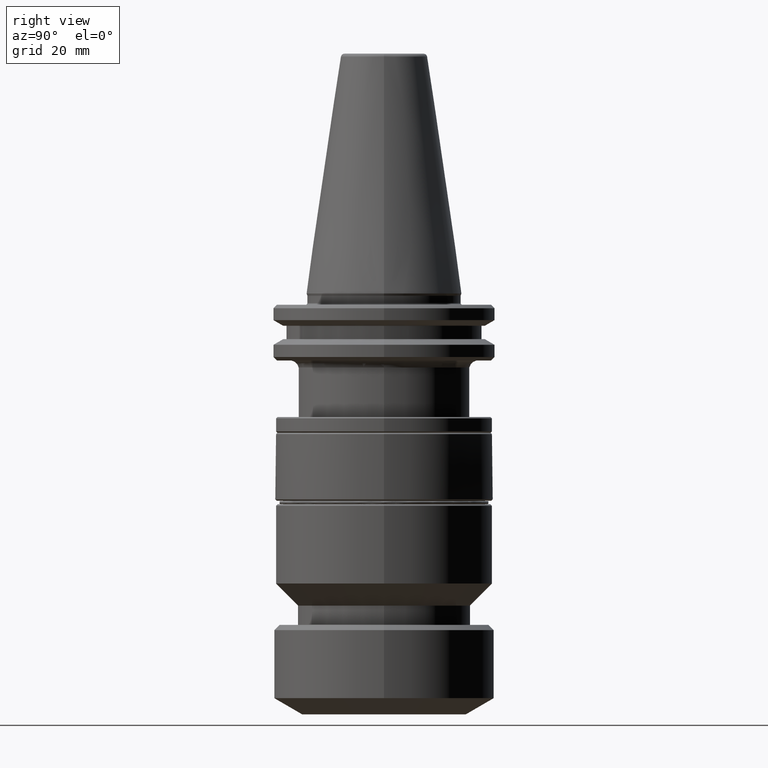
[diagram: clean part render]
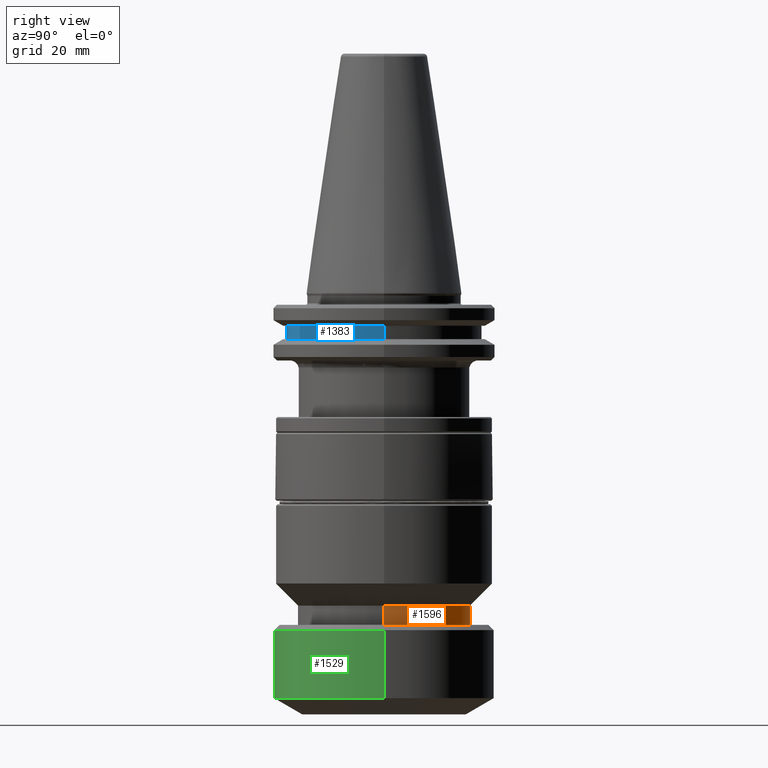
[diagram: same view with three faces highlighted in distinct colors, each labeled with its STEP entity id]
A machine part, right view with three faces highlighted in distinct colors.
Their STEP definitions:

[orange] entity #1596 — the highlighted cylindrical surface (partial cylindrical patch) has radius 24.7 mm, axis along (0, 0, 1).
#54 = CARTESIAN_POINT ( 'NONE',  ( 0.0000000000000000000, 0.0000000000000000000, 0.0000000000000000000 ) ) ;
#68 = CYLINDRICAL_SURFACE ( 'NONE', #1548, 24.69999999999999900 ) ;
#121 = LINE ( 'NONE', #1670, #1106 ) ;
#132 = DIRECTION ( 'NONE',  ( 0.0000000000000000000, 0.0000000000000000000, 1.000000000000000000 ) ) ;
#179 = CARTESIAN_POINT ( 'NONE',  ( 0.0000000000000000000, 0.0000000000000000000, -94.50000000000000000 ) ) ;
#188 = EDGE_LOOP ( 'NONE', ( #339, #939, #973, #630 ) ) ;
#297 = CARTESIAN_POINT ( 'NONE',  ( -24.69999999999999900, 3.024877593893962600E-015, -94.50000000000000000 ) ) ;
#306 = EDGE_CURVE ( 'NONE', #693, #530, #1835, .T. ) ;
#339 = ORIENTED_EDGE ( 'NONE', *, *, #1857, .T. ) ;
#346 = DIRECTION ( 'NONE',  ( 0.0000000000000000000, 0.0000000000000000000, 1.000000000000000000 ) ) ;
#389 = AXIS2_PLACEMENT_3D ( 'NONE', #1406, #1537, #1639 ) ;
#458 = VECTOR ( 'NONE', #1663, 1000.000000000000000 ) ;
#530 = VERTEX_POINT ( 'NONE', #1477 ) ;
#606 = FACE_OUTER_BOUND ( 'NONE', #188, .T. ) ;
#630 = ORIENTED_EDGE ( 'NONE', *, *, #1586, .F. ) ;
#693 = VERTEX_POINT ( 'NONE', #826 ) ;
#826 = CARTESIAN_POINT ( 'NONE',  ( 24.69999999999999900, 0.0000000000000000000, -89.00000000000000000 ) ) ;
#939 = ORIENTED_EDGE ( 'NONE', *, *, #1425, .T. ) ;
#973 = ORIENTED_EDGE ( 'NONE', *, *, #306, .F. ) ;
#998 = CIRCLE ( 'NONE', #1326, 24.69999999999999900 ) ;
#1018 = DIRECTION ( 'NONE',  ( 1.000000000000000000, 0.0000000000000000000, 0.0000000000000000000 ) ) ;
#1106 = VECTOR ( 'NONE', #1730, 1000.000000000000000 ) ;
#1220 = DIRECTION ( 'NONE',  ( 1.000000000000000000, 0.0000000000000000000, 0.0000000000000000000 ) ) ;
#1280 = VERTEX_POINT ( 'NONE', #297 ) ;
#1326 = AXIS2_PLACEMENT_3D ( 'NONE', #179, #132, #1018 ) ;
#1406 = CARTESIAN_POINT ( 'NONE',  ( 0.0000000000000000000, 0.0000000000000000000, -89.00000000000000000 ) ) ;
#1425 = EDGE_CURVE ( 'NONE', #1280, #530, #1759, .T. ) ;
#1477 = CARTESIAN_POINT ( 'NONE',  ( -24.69999999999999900, 3.024877593893962600E-015, -89.00000000000000000 ) ) ;
#1479 = CARTESIAN_POINT ( 'NONE',  ( 24.69999999999999900, 0.0000000000000000000, -94.50000000000000000 ) ) ;
#1537 = DIRECTION ( 'NONE',  ( 0.0000000000000000000, 0.0000000000000000000, 1.000000000000000000 ) ) ;
#1548 = AXIS2_PLACEMENT_3D ( 'NONE', #54, #346, #1220 ) ;
#1586 = EDGE_CURVE ( 'NONE', #1913, #693, #121, .T. ) ;
#1596 = ADVANCED_FACE ( 'NONE', ( #606 ), #68, .T. ) ;
#1639 = DIRECTION ( 'NONE',  ( 1.000000000000000000, 0.0000000000000000000, 0.0000000000000000000 ) ) ;
#1663 = DIRECTION ( 'NONE',  ( 0.0000000000000000000, 0.0000000000000000000, 1.000000000000000000 ) ) ;
#1670 = CARTESIAN_POINT ( 'NONE',  ( 24.69999999999999900, 0.0000000000000000000, 0.0000000000000000000 ) ) ;
#1690 = CARTESIAN_POINT ( 'NONE',  ( -24.69999999999999900, 3.024877593893962600E-015, 0.0000000000000000000 ) ) ;
#1730 = DIRECTION ( 'NONE',  ( 0.0000000000000000000, 0.0000000000000000000, 1.000000000000000000 ) ) ;
#1759 = LINE ( 'NONE', #1690, #458 ) ;
#1835 = CIRCLE ( 'NONE', #389, 24.69999999999999900 ) ;
#1857 = EDGE_CURVE ( 'NONE', #1913, #1280, #998, .T. ) ;
#1913 = VERTEX_POINT ( 'NONE', #1479 ) ;

[blue] entity #1383 — the highlighted cylindrical surface (partial cylindrical patch) has radius 28 mm, axis along (-0, -0, 1).
#4 = DIRECTION ( 'NONE',  ( 1.000000000000000000, 0.0000000000000000000, 0.0000000000000000000 ) ) ;
#8 = DIRECTION ( 'NONE',  ( -0.0000000000000000000, -0.0000000000000000000, 1.000000000000000000 ) ) ;
#10 = CARTESIAN_POINT ( 'NONE',  ( 0.0000000000000000000, 0.0000000000000000000, -9.200000000000041900 ) ) ;
#48 = CYLINDRICAL_SURFACE ( 'NONE', #1016, 28.00000000000013500 ) ;
#191 = DIRECTION ( 'NONE',  ( -0.0000000000000000000, -0.0000000000000000000, 1.000000000000000000 ) ) ;
#274 = CARTESIAN_POINT ( 'NONE',  ( 28.00000000000013500, 0.0000000000000000000, -13.00000000000001100 ) ) ;
#341 = ORIENTED_EDGE ( 'NONE', *, *, #1571, .T. ) ;
#362 = CARTESIAN_POINT ( 'NONE',  ( 0.0000000000000000000, 0.0000000000000000000, 139.8559836835894700 ) ) ;
#369 = CIRCLE ( 'NONE', #1434, 28.00000000000013500 ) ;
#414 = CARTESIAN_POINT ( 'NONE',  ( -28.00000000000013500, 3.429011037612605800E-015, 139.8559836835894700 ) ) ;
#486 = VERTEX_POINT ( 'NONE', #1939 ) ;
#567 = VERTEX_POINT ( 'NONE', #1225 ) ;
#583 = VERTEX_POINT ( 'NONE', #1022 ) ;
#646 = ORIENTED_EDGE ( 'NONE', *, *, #1252, .F. ) ;
#683 = EDGE_CURVE ( 'NONE', #1112, #486, #872, .T. ) ;
#714 = DIRECTION ( 'NONE',  ( -0.0000000000000000000, -0.0000000000000000000, 1.000000000000000000 ) ) ;
#812 = LINE ( 'NONE', #414, #1876 ) ;
#833 = DIRECTION ( 'NONE',  ( -0.0000000000000000000, -0.0000000000000000000, 1.000000000000000000 ) ) ;
#836 = CARTESIAN_POINT ( 'NONE',  ( 28.00000000000013500, 0.0000000000000000000, 139.8559836835894700 ) ) ;
#872 = LINE ( 'NONE', #836, #1968 ) ;
#980 = AXIS2_PLACEMENT_3D ( 'NONE', #1725, #1089, #1006 ) ;
#1006 = DIRECTION ( 'NONE',  ( 1.000000000000000000, 0.0000000000000000000, 0.0000000000000000000 ) ) ;
#1016 = AXIS2_PLACEMENT_3D ( 'NONE', #362, #191, #1507 ) ;
#1022 = CARTESIAN_POINT ( 'NONE',  ( -28.00000000000013500, 3.429011037612605800E-015, -9.200000000000041900 ) ) ;
#1089 = DIRECTION ( 'NONE',  ( -0.0000000000000000000, -0.0000000000000000000, 1.000000000000000000 ) ) ;
#1112 = VERTEX_POINT ( 'NONE', #274 ) ;
#1225 = CARTESIAN_POINT ( 'NONE',  ( -28.00000000000013500, 3.429011037612605800E-015, -13.00000000000001100 ) ) ;
#1251 = ORIENTED_EDGE ( 'NONE', *, *, #1275, .F. ) ;
#1252 = EDGE_CURVE ( 'NONE', #583, #486, #369, .T. ) ;
#1275 = EDGE_CURVE ( 'NONE', #567, #583, #812, .T. ) ;
#1379 = FACE_OUTER_BOUND ( 'NONE', #1824, .T. ) ;
#1383 = ADVANCED_FACE ( 'NONE', ( #1379 ), #48, .T. ) ;
#1434 = AXIS2_PLACEMENT_3D ( 'NONE', #10, #8, #4 ) ;
#1507 = DIRECTION ( 'NONE',  ( 1.000000000000000000, 0.0000000000000000000, 0.0000000000000000000 ) ) ;
#1571 = EDGE_CURVE ( 'NONE', #567, #1112, #1814, .T. ) ;
#1725 = CARTESIAN_POINT ( 'NONE',  ( 0.0000000000000000000, 0.0000000000000000000, -13.00000000000001100 ) ) ;
#1814 = CIRCLE ( 'NONE', #980, 28.00000000000013500 ) ;
#1824 = EDGE_LOOP ( 'NONE', ( #1251, #341, #1925, #646 ) ) ;
#1876 = VECTOR ( 'NONE', #714, 1000.000000000000000 ) ;
#1925 = ORIENTED_EDGE ( 'NONE', *, *, #683, .T. ) ;
#1939 = CARTESIAN_POINT ( 'NONE',  ( 28.00000000000013500, 0.0000000000000000000, -9.200000000000041900 ) ) ;
#1968 = VECTOR ( 'NONE', #833, 1000.000000000000000 ) ;

[green] entity #1529 — the highlighted cylindrical surface (partial cylindrical patch) has radius 31.5 mm, axis along (0, 0, 1).
#187 = DIRECTION ( 'NONE',  ( 1.000000000000000000, 0.0000000000000000000, 0.0000000000000000000 ) ) ;
#189 = DIRECTION ( 'NONE',  ( 0.0000000000000000000, 0.0000000000000000000, 1.000000000000000000 ) ) ;
#192 = CARTESIAN_POINT ( 'NONE',  ( 0.0000000000000000000, 0.0000000000000000000, -115.3811978464829300 ) ) ;
#216 = AXIS2_PLACEMENT_3D ( 'NONE', #192, #189, #187 ) ;
#264 = ORIENTED_EDGE ( 'NONE', *, *, #1172, .T. ) ;
#308 = CARTESIAN_POINT ( 'NONE',  ( 31.50000000000000000, 0.0000000000000000000, -96.00000000000000000 ) ) ;
#404 = LINE ( 'NONE', #1314, #1631 ) ;
#413 = DIRECTION ( 'NONE',  ( -0.0000000000000000000, -0.0000000000000000000, 1.000000000000000000 ) ) ;
#434 = EDGE_CURVE ( 'NONE', #1540, #1610, #1339, .T. ) ;
#462 = EDGE_CURVE ( 'NONE', #1762, #712, #404, .T. ) ;
#490 = AXIS2_PLACEMENT_3D ( 'NONE', #682, #1307, #1340 ) ;
#511 = CARTESIAN_POINT ( 'NONE',  ( 0.0000000000000000000, 0.0000000000000000000, -96.00000000000000000 ) ) ;
#538 = CIRCLE ( 'NONE', #216, 31.50000000000000000 ) ;
#682 = CARTESIAN_POINT ( 'NONE',  ( 0.0000000000000000000, 0.0000000000000000000, 0.0000000000000000000 ) ) ;
#712 = VERTEX_POINT ( 'NONE', #813 ) ;
#730 = CYLINDRICAL_SURFACE ( 'NONE', #490, 31.50000000000000000 ) ;
#753 = CARTESIAN_POINT ( 'NONE',  ( 31.50000000000000000, 0.0000000000000000000, -115.3811978464829300 ) ) ;
#766 = ORIENTED_EDGE ( 'NONE', *, *, #434, .T. ) ;
#813 = CARTESIAN_POINT ( 'NONE',  ( -31.50000000000000000, 3.857637417314162700E-015, -96.00000000000000000 ) ) ;
#912 = ORIENTED_EDGE ( 'NONE', *, *, #462, .F. ) ;
#919 = CIRCLE ( 'NONE', #1647, 31.50000000000000000 ) ;
#1079 = DIRECTION ( 'NONE',  ( -1.000000000000000000, 0.0000000000000000000, 0.0000000000000000000 ) ) ;
#1095 = EDGE_LOOP ( 'NONE', ( #912, #264, #766, #1621 ) ) ;
#1172 = EDGE_CURVE ( 'NONE', #1762, #1540, #538, .T. ) ;
#1257 = CARTESIAN_POINT ( 'NONE',  ( 31.50000000000000000, 0.0000000000000000000, 0.0000000000000000000 ) ) ;
#1307 = DIRECTION ( 'NONE',  ( 0.0000000000000000000, 0.0000000000000000000, 1.000000000000000000 ) ) ;
#1314 = CARTESIAN_POINT ( 'NONE',  ( -31.50000000000000000, 3.857637417314162700E-015, 0.0000000000000000000 ) ) ;
#1336 = CARTESIAN_POINT ( 'NONE',  ( -31.50000000000000000, 3.857637417314162700E-015, -115.3811978464829300 ) ) ;
#1339 = LINE ( 'NONE', #1257, #2029 ) ;
#1340 = DIRECTION ( 'NONE',  ( 1.000000000000000000, 0.0000000000000000000, 0.0000000000000000000 ) ) ;
#1450 = DIRECTION ( 'NONE',  ( 0.0000000000000000000, 0.0000000000000000000, 1.000000000000000000 ) ) ;
#1529 = ADVANCED_FACE ( 'NONE', ( #1713 ), #730, .T. ) ;
#1540 = VERTEX_POINT ( 'NONE', #753 ) ;
#1610 = VERTEX_POINT ( 'NONE', #308 ) ;
#1619 = EDGE_CURVE ( 'NONE', #712, #1610, #919, .T. ) ;
#1621 = ORIENTED_EDGE ( 'NONE', *, *, #1619, .F. ) ;
#1631 = VECTOR ( 'NONE', #1844, 1000.000000000000000 ) ;
#1647 = AXIS2_PLACEMENT_3D ( 'NONE', #511, #413, #1079 ) ;
#1713 = FACE_OUTER_BOUND ( 'NONE', #1095, .T. ) ;
#1762 = VERTEX_POINT ( 'NONE', #1336 ) ;
#1844 = DIRECTION ( 'NONE',  ( 0.0000000000000000000, 0.0000000000000000000, 1.000000000000000000 ) ) ;
#2029 = VECTOR ( 'NONE', #1450, 1000.000000000000000 ) ;